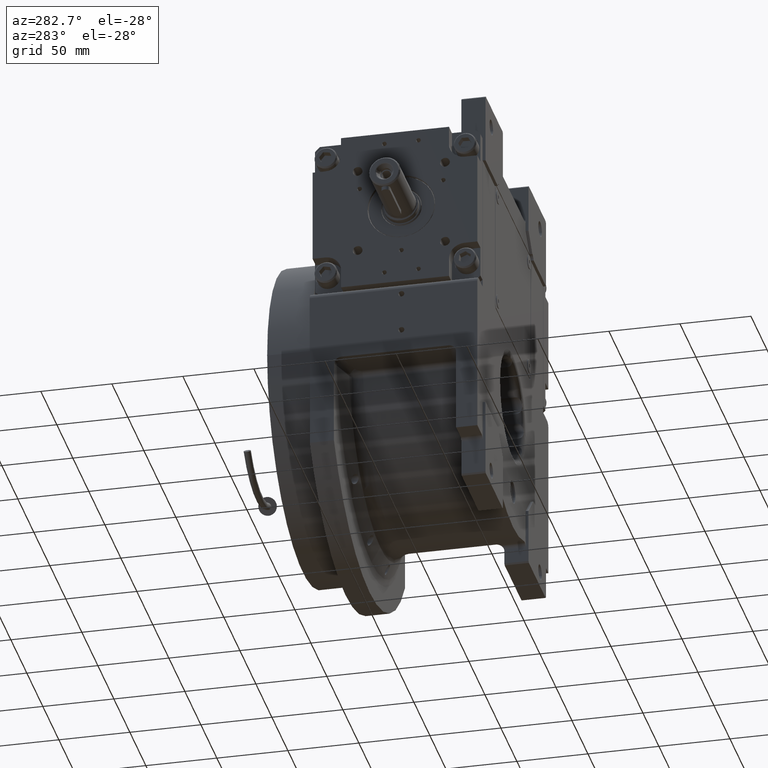
[diagram: clean part render]
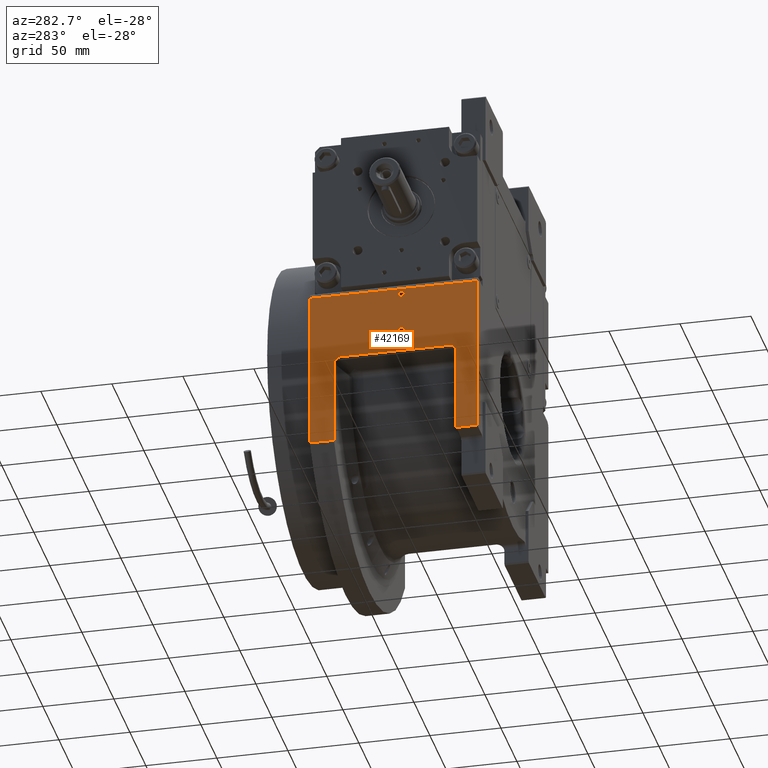
[diagram: same view with one face highlighted and labeled with its STEP entity id]
A machine part, auxiliary view. The second image highlights one B-rep face of the part: STEP entity #42169.
In plain terms, the highlighted planar face has unit normal (-1, 0, 0).
Its self-contained STEP definition (entity closure, byte-faithful):
#397 = CARTESIAN_POINT ( 'NONE',  ( -111.0000000000000000, -2.100000000000000089, 9.000000000000000000 ) ) ;
#458 = ORIENTED_EDGE ( 'NONE', *, *, #38460, .F. ) ;
#565 = CARTESIAN_POINT ( 'NONE',  ( -111.0000000000000000, -2.100000000000000089, 37.00000000000000000 ) ) ;
#1986 = CARTESIAN_POINT ( 'NONE',  ( -110.9999999993382005, 42.40620941626179530, -7.000000000177450055 ) ) ;
#2061 =( BOUNDED_CURVE ( )  B_SPLINE_CURVE ( 3, ( #22056, #43980, #17308, #12574 ),
 .UNSPECIFIED., .F., .F. ) 
 B_SPLINE_CURVE_WITH_KNOTS ( ( 4, 4 ),
 ( 3.141592653590854045, 4.712388980385856740 ),
 .UNSPECIFIED. ) 
 CURVE ( )  GEOMETRIC_REPRESENTATION_ITEM ( )  RATIONAL_B_SPLINE_CURVE ( ( 1.000000000000000000, 0.8047378541243400685, 0.8047378541243400685, 1.000000000000000000 ) ) 
 REPRESENTATION_ITEM ( '' )  );
#2124 = ORIENTED_EDGE ( 'NONE', *, *, #12281, .T. ) ;
#2135 = VECTOR ( 'NONE', #46372, 1000.000000000000000 ) ;
#2628 = DIRECTION ( 'NONE',  ( 0.000000000000000000, -1.000000000000000000, 0.000000000000000000 ) ) ;
#3137 = VECTOR ( 'NONE', #33917, 1000.000000000000000 ) ;
#3225 = CARTESIAN_POINT ( 'NONE',  ( -110.9999999999999858, 47.45869610671962846, -20.70783326501533494 ) ) ;
#4282 = CIRCLE ( 'NONE', #5412, 2.100000000000000089 ) ;
#4393 = VERTEX_POINT ( 'NONE', #1986 ) ;
#4504 = EDGE_LOOP ( 'NONE', ( #30793, #5521, #31990, #27922, #63149, #34909, #7654, #24904, #37010, #62690, #458 ) ) ;
#4880 = EDGE_CURVE ( 'NONE', #33159, #60957, #56171, .T. ) ;
#4914 = CARTESIAN_POINT ( 'NONE',  ( -111.0000000000000284, 43.65692249831813143, -7.119924177572298341 ) ) ;
#5254 = CARTESIAN_POINT ( 'NONE',  ( -110.9999999999999574, 46.59747468668511772, -9.345669636517394352 ) ) ;
#5305 = VERTEX_POINT ( 'NONE', #15878 ) ;
#5412 = AXIS2_PLACEMENT_3D ( 'NONE', #51448, #11215, #16606 ) ;
#5521 = ORIENTED_EDGE ( 'NONE', *, *, #38679, .F. ) ;
#6054 = CARTESIAN_POINT ( 'NONE',  ( -111.0000000000000000, -3.552713678800499352E-15, 37.00000000000000000 ) ) ;
#7005 = CARTESIAN_POINT ( 'NONE',  ( -111.0000000000000142, 47.38804427955523835, -17.60168279826294579 ) ) ;
#7175 = CARTESIAN_POINT ( 'NONE',  ( -111.0000000000000000, 64.50000000000000000, -71.43528539874399996 ) ) ;
#7654 = ORIENTED_EDGE ( 'NONE', *, *, #8674, .T. ) ;
#7731 = VERTEX_POINT ( 'NONE', #14542 ) ;
#8674 = EDGE_CURVE ( 'NONE', #5305, #7731, #2061, .T. ) ;
#9003 = CARTESIAN_POINT ( 'NONE',  ( -111.0000000000000000, -3.552713678800499352E-15, 37.00000000000000000 ) ) ;
#10210 = EDGE_CURVE ( 'NONE', #7731, #47269, #18387, .T. ) ;
#10480 = CARTESIAN_POINT ( 'NONE',  ( -110.9999998426041969, 47.24161804384319652, -11.75654023702319861 ) ) ;
#11004 = CARTESIAN_POINT ( 'NONE',  ( -111.0000000000000142, 46.87834784565706059, -10.00509416193215095 ) ) ;
#11027 = VECTOR ( 'NONE', #37488, 1000.000000000000000 ) ;
#11215 = DIRECTION ( 'NONE',  ( 1.000000000000000000, 0.000000000000000000, 0.000000000000000000 ) ) ;
#12219 = DIRECTION ( 'NONE',  ( 0.000000000000000000, 0.000000000000000000, 1.000000000000000000 ) ) ;
#12281 = EDGE_CURVE ( 'NONE', #45983, #34188, #57401, .T. ) ;
#12425 = VECTOR ( 'NONE', #12219, 1000.000000000000000 ) ;
#12574 = CARTESIAN_POINT ( 'NONE',  ( -111.0000000000000000, -38.50000000000000000, -12.17638090205042189 ) ) ;
#12631 = ORIENTED_EDGE ( 'NONE', *, *, #21640, .T. ) ;
#12771 = CARTESIAN_POINT ( 'NONE',  ( -111.0000000000000000, 64.50000000000000000, 41.00000000000000000 ) ) ;
#13236 = VECTOR ( 'NONE', #57407, 1000.000000000000000 ) ;
#14542 = CARTESIAN_POINT ( 'NONE',  ( -111.0000000000000000, -38.50000000000000000, -12.17638090205042189 ) ) ;
#15634 = EDGE_CURVE ( 'NONE', #62196, #51669, #63195, .T. ) ;
#15806 = LINE ( 'NONE', #31384, #13236 ) ;
#15878 = CARTESIAN_POINT ( 'NONE',  ( -111.0000000000000000, -33.50000000000000000, -7.000000000000000000 ) ) ;
#16053 = CARTESIAN_POINT ( 'NONE',  ( -111.0000000000000142, 46.96112643920030649, -10.22283934410663697 ) ) ;
#16095 = EDGE_CURVE ( 'NONE', #51669, #47269, #15806, .T. ) ;
#16513 = DIRECTION ( 'NONE',  ( 1.000000000000000000, 0.000000000000000000, 0.000000000000000000 ) ) ;
#16606 = DIRECTION ( 'NONE',  ( 0.000000000000000000, -1.000000000000000000, -1.652117596168387559E-15 ) ) ;
#16767 = CARTESIAN_POINT ( 'NONE',  ( -111.0000000000000000, 47.50000000000000000, -25.44626115736729588 ) ) ;
#17308 = CARTESIAN_POINT ( 'NONE',  ( -111.0000000000000284, -38.50000000000000000, -9.144127173638402439 ) ) ;
#17613 = LINE ( 'NONE', #7175, #12425 ) ;
#18107 = CARTESIAN_POINT ( 'NONE',  ( -111.0000000000000142, 47.38697793714037942, -17.55712914402924696 ) ) ;
#18346 = LINE ( 'NONE', #38994, #3137 ) ;
#18387 = LINE ( 'NONE', #23152, #42441 ) ;
#19466 = DIRECTION ( 'NONE',  ( 0.000000000000000000, 1.000000000000000000, 0.000000000000000000 ) ) ;
#20233 = VERTEX_POINT ( 'NONE', #12771 ) ;
#20351 = CARTESIAN_POINT ( 'NONE',  ( -111.0000000000000000, 47.50000000000000000, -71.43528539874399996 ) ) ;
#20455 = CARTESIAN_POINT ( 'NONE',  ( -111.0000000000000000, 44.38355727844160015, -7.415682013062533606 ) ) ;
#20633 = CARTESIAN_POINT ( 'NONE',  ( -111.0000000000000000, -53.50000000000000000, 41.00000000000000000 ) ) ;
#21464 = CARTESIAN_POINT ( 'NONE',  ( -110.9999999999999574, 46.24926438878902246, -8.831662360591032268 ) ) ;
#21640 = EDGE_CURVE ( 'NONE', #34188, #45983, #4282, .T. ) ;
#21803 = CARTESIAN_POINT ( 'NONE',  ( -111.0000000000000142, 47.23304483909880958, -11.43688986518032635 ) ) ;
#22056 = CARTESIAN_POINT ( 'NONE',  ( -111.0000000000000000, -33.50000000000000000, -7.000000000000000000 ) ) ;
#23045 = EDGE_CURVE ( 'NONE', #24157, #20233, #17613, .T. ) ;
#23152 = CARTESIAN_POINT ( 'NONE',  ( -111.0000000000000000, -38.50000000000000000, -12.17638090205040058 ) ) ;
#23205 = CARTESIAN_POINT ( 'NONE',  ( -111.0000000000000284, 47.38981798226070907, -17.67600262140464196 ) ) ;
#23272 = DIRECTION ( 'NONE',  ( 0.000000000000000000, 0.000000000000000000, 1.000000000000000000 ) ) ;
#23589 = CARTESIAN_POINT ( 'NONE',  ( -111.0000000000000000, 47.50000000000000000, -71.43528539874399996 ) ) ;
#23669 = FACE_BOUND ( 'NONE', #41118, .T. ) ;
#24157 = VERTEX_POINT ( 'NONE', #40309 ) ;
#24904 = ORIENTED_EDGE ( 'NONE', *, *, #10210, .T. ) ;
#25402 = EDGE_LOOP ( 'NONE', ( #2124, #12631 ) ) ;
#25786 = LINE ( 'NONE', #20351, #2135 ) ;
#26891 = CARTESIAN_POINT ( 'NONE',  ( -111.0000000000000142, 46.90681310458562336, -10.07660401504372771 ) ) ;
#27576 = CIRCLE ( 'NONE', #49100, 2.100000000000000089 ) ;
#27922 = ORIENTED_EDGE ( 'NONE', *, *, #4880, .T. ) ;
#27951 = CARTESIAN_POINT ( 'NONE',  ( -111.0000000000000000, 47.37801887890174868, -17.18315811918595060 ) ) ;
#28296 = CARTESIAN_POINT ( 'NONE',  ( -110.9999999999999858, 47.49184152199143227, -23.26125549203704068 ) ) ;
#28770 = FACE_BOUND ( 'NONE', #25402, .T. ) ;
#29431 = CARTESIAN_POINT ( 'NONE',  ( -111.0000000000000000, -3.552713678800499352E-15, 9.000000000000000000 ) ) ;
#29644 = DIRECTION ( 'NONE',  ( 1.000000000000000000, 0.000000000000000000, 0.000000000000000000 ) ) ;
#30793 = ORIENTED_EDGE ( 'NONE', *, *, #23045, .F. ) ;
#31384 = CARTESIAN_POINT ( 'NONE',  ( -111.0000000000000000, -53.50000000000000000, -71.43528539874409944 ) ) ;
#31641 = CARTESIAN_POINT ( 'NONE',  ( -110.9999998426041969, 47.24161804384319652, -11.75654023702319861 ) ) ;
#31990 = ORIENTED_EDGE ( 'NONE', *, *, #66674, .T. ) ;
#33030 = CARTESIAN_POINT ( 'NONE',  ( -111.0000000000000568, 47.38398366112607363, -17.43201616111707608 ) ) ;
#33159 = VERTEX_POINT ( 'NONE', #16767 ) ;
#33709 = EDGE_CURVE ( 'NONE', #34961, #57940, #47557, .T. ) ;
#33917 = DIRECTION ( 'NONE',  ( 0.000000000000000000, -1.000000000000000000, 0.000000000000000000 ) ) ;
#34100 = VERTEX_POINT ( 'NONE', #34556 ) ;
#34188 = VERTEX_POINT ( 'NONE', #397 ) ;
#34371 = VECTOR ( 'NONE', #19466, 1000.000000000000000 ) ;
#34556 = CARTESIAN_POINT ( 'NONE',  ( -111.0000000000000000, 47.50000000000000000, -71.43528539874399996 ) ) ;
#34909 = ORIENTED_EDGE ( 'NONE', *, *, #50240, .F. ) ;
#34961 = VERTEX_POINT ( 'NONE', #565 ) ;
#36366 = CARTESIAN_POINT ( 'NONE',  ( -111.0000000000000142, 45.57238403428445395, -8.162200170006535416 ) ) ;
#37010 = ORIENTED_EDGE ( 'NONE', *, *, #16095, .F. ) ;
#37029 = CARTESIAN_POINT ( 'NONE',  ( -111.0000000000000284, 44.80537002266407853, -7.628406989121505610 ) ) ;
#37362 = CARTESIAN_POINT ( 'NONE',  ( -111.0000000000000000, 47.03723638803381846, -10.44364842193959575 ) ) ;
#37488 = DIRECTION ( 'NONE',  ( 0.000000000000000000, 0.000000000000000000, -1.000000000000000000 ) ) ;
#38460 = EDGE_CURVE ( 'NONE', #20233, #62196, #18346, .T. ) ;
#38569 = DIRECTION ( 'NONE',  ( -1.000000000000000000, 0.000000000000000000, 0.000000000000000000 ) ) ;
#38679 = EDGE_CURVE ( 'NONE', #34100, #24157, #25786, .T. ) ;
#38737 = CARTESIAN_POINT ( 'NONE',  ( -110.9999998426041969, 47.24161804384319652, -11.75654023702319861 ) ) ;
#38994 = CARTESIAN_POINT ( 'NONE',  ( -111.0000000000000000, 64.50000000000000000, 41.00000000000000000 ) ) ;
#39031 = DIRECTION ( 'NONE',  ( 0.000000000000000000, 0.000000000000000000, -1.000000000000000000 ) ) ;
#40309 = CARTESIAN_POINT ( 'NONE',  ( -111.0000000000000000, 64.50000000000000000, -71.43528539874399996 ) ) ;
#40949 = EDGE_CURVE ( 'NONE', #57940, #34961, #27576, .T. ) ;
#41118 = EDGE_LOOP ( 'NONE', ( #49130, #44121 ) ) ;
#41422 = CARTESIAN_POINT ( 'NONE',  ( -111.0000000000000000, 45.20819138357048672, -7.866231648914137509 ) ) ;
#41709 = CARTESIAN_POINT ( 'NONE',  ( -111.0000000000000000, 2.100000000000000089, 37.00000000000000000 ) ) ;
#42067 = CARTESIAN_POINT ( 'NONE',  ( -111.0000000000000142, 43.04624886168785025, -7.001080695584134261 ) ) ;
#42169 = ADVANCED_FACE ( 'NONE', ( #28770, #23669, #58547 ), #49352, .T. ) ;
#42441 = VECTOR ( 'NONE', #39031, 1000.000000000000000 ) ;
#43202 = LINE ( 'NONE', #23589, #54751 ) ;
#43799 = CARTESIAN_POINT ( 'NONE',  ( -110.9999999999999716, 47.35640947859300098, -16.28572579493090444 ) ) ;
#43980 = CARTESIAN_POINT ( 'NONE',  ( -111.0000000000000142, -36.42893218813447476, -6.999999999999989342 ) ) ;
#44121 = ORIENTED_EDGE ( 'NONE', *, *, #33709, .T. ) ;
#45983 = VERTEX_POINT ( 'NONE', #63369 ) ;
#46372 = DIRECTION ( 'NONE',  ( 0.000000000000000000, 1.000000000000000000, 0.000000000000000000 ) ) ;
#47269 = VERTEX_POINT ( 'NONE', #61637 ) ;
#47557 = CIRCLE ( 'NONE', #50773, 2.100000000000000089 ) ;
#48373 = CARTESIAN_POINT ( 'NONE',  ( -111.0000000000000000, -53.50000000000000000, -71.43528539874399996 ) ) ;
#48542 = CARTESIAN_POINT ( 'NONE',  ( -111.0000000000000284, 47.26671036820440008, -12.69711666045169274 ) ) ;
#48873 = CARTESIAN_POINT ( 'NONE',  ( -111.0000000000000142, 47.39775283363938030, -18.01025571059393826 ) ) ;
#49024 = DIRECTION ( 'NONE',  ( 0.000000000000000000, 0.000000000000000000, 1.000000000000000000 ) ) ;
#49100 = AXIS2_PLACEMENT_3D ( 'NONE', #9003, #29644, #50228 ) ;
#49130 = ORIENTED_EDGE ( 'NONE', *, *, #40949, .T. ) ;
#49209 = CARTESIAN_POINT ( 'NONE',  ( -111.0000000000000284, 47.30739276393136095, -14.28307552350015541 ) ) ;
#49251 = CARTESIAN_POINT ( 'NONE',  ( -111.0000000000000000, -53.50000000000000000, -71.43528539874409944 ) ) ;
#49352 = PLANE ( 'NONE',  #64188 ) ;
#50228 = DIRECTION ( 'NONE',  ( 0.000000000000000000, 1.000000000000000000, 0.000000000000000000 ) ) ;
#50240 = EDGE_CURVE ( 'NONE', #5305, #4393, #55334, .T. ) ;
#50773 = AXIS2_PLACEMENT_3D ( 'NONE', #6054, #16513, #2628 ) ;
#51448 = CARTESIAN_POINT ( 'NONE',  ( -111.0000000000000000, -3.552713678800499352E-15, 9.000000000000000000 ) ) ;
#51669 = VERTEX_POINT ( 'NONE', #49251 ) ;
#52717 = CARTESIAN_POINT ( 'NONE',  ( -111.0000000000000000, -53.50000000000000000, 41.00000000000000000 ) ) ;
#54751 = VECTOR ( 'NONE', #23272, 1000.000000000000000 ) ;
#55269 = AXIS2_PLACEMENT_3D ( 'NONE', #29431, #60837, #65885 ) ;
#55334 = LINE ( 'NONE', #65787, #34371 ) ;
#55835 = EDGE_CURVE ( 'NONE', #60957, #4393, #56830, .T. ) ;
#56171 = B_SPLINE_CURVE_WITH_KNOTS ( 'NONE', 3,
 ( #60050, #28296, #3225, #48873, #23205, #7005, #18107, #33030, #27951, #43799, #49209, #48542, #38737 ),
 .UNSPECIFIED., .F., .F.,
 ( 4, 1, 1, 2, 2, 1, 1, 1, 4 ),
 ( 0.000000000000000000, 0.4999999999999906741, 0.5624999999999891198, 0.5703124999999893419, 0.5781249999999896749, 0.5937499999999901190, 0.6249999999999905631, 0.7499999999999935607, 1.000000000000000000 ),
 .UNSPECIFIED. ) ;
#56651 = CARTESIAN_POINT ( 'NONE',  ( -111.0000000000000142, 47.17730589702550503, -10.96906219321990150 ) ) ;
#56830 = B_SPLINE_CURVE_WITH_KNOTS ( 'NONE', 3,
 ( #31641, #21803, #56651, #37362, #16053, #26891, #11004, #5254, #21464, #36366, #41422, #37029, #62064, #20455, #4914, #42067, #56979 ),
 .UNSPECIFIED., .F., .F.,
 ( 4, 1, 1, 2, 2, 2, 1, 2, 2, 4 ),
 ( 0.000000000000000000, 0.1249999999999996114, 0.1874999999999987788, 0.2187499999999980571, 0.2499999999999973077, 0.4999999999999975575, 0.6249999999999972244, 0.6874999999999972244, 0.7499999999999972244, 1.000000000000000000 ),
 .UNSPECIFIED. ) ;
#56979 = CARTESIAN_POINT ( 'NONE',  ( -110.9999999993382005, 42.40620941626179530, -7.000000000177450055 ) ) ;
#57401 = CIRCLE ( 'NONE', #55269, 2.100000000000000089 ) ;
#57407 = DIRECTION ( 'NONE',  ( 0.000000000000000000, 1.000000000000000000, 0.000000000000000000 ) ) ;
#57940 = VERTEX_POINT ( 'NONE', #41709 ) ;
#58547 = FACE_OUTER_BOUND ( 'NONE', #4504, .T. ) ;
#60050 = CARTESIAN_POINT ( 'NONE',  ( -111.0000000000000000, 47.50000000000000000, -25.44626115736729588 ) ) ;
#60837 = DIRECTION ( 'NONE',  ( 1.000000000000000000, 0.000000000000000000, 0.000000000000000000 ) ) ;
#60957 = VERTEX_POINT ( 'NONE', #10480 ) ;
#61637 = CARTESIAN_POINT ( 'NONE',  ( -111.0000000000000000, -38.50000000000000000, -71.43528539874409944 ) ) ;
#62064 = CARTESIAN_POINT ( 'NONE',  ( -110.9999999999999858, 44.52823829090591090, -7.482778073993033630 ) ) ;
#62196 = VERTEX_POINT ( 'NONE', #20633 ) ;
#62690 = ORIENTED_EDGE ( 'NONE', *, *, #15634, .F. ) ;
#63149 = ORIENTED_EDGE ( 'NONE', *, *, #55835, .T. ) ;
#63195 = LINE ( 'NONE', #52717, #11027 ) ;
#63369 = CARTESIAN_POINT ( 'NONE',  ( -111.0000000000000000, 2.100000000000000089, 9.000000000000000000 ) ) ;
#64188 = AXIS2_PLACEMENT_3D ( 'NONE', #48373, #38569, #49024 ) ;
#65787 = CARTESIAN_POINT ( 'NONE',  ( -111.0000000000000000, -33.50000000000000000, -7.000000000000000000 ) ) ;
#65885 = DIRECTION ( 'NONE',  ( 0.000000000000000000, 1.000000000000000000, 1.652117596168387559E-15 ) ) ;
#66674 = EDGE_CURVE ( 'NONE', #34100, #33159, #43202, .T. ) ;